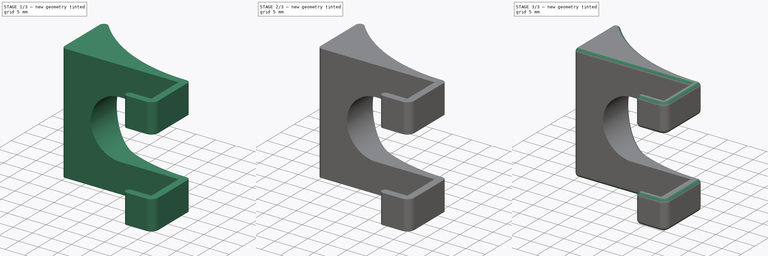
[diagram: build sequence overview — one tinted view per stage of 3, left to right]
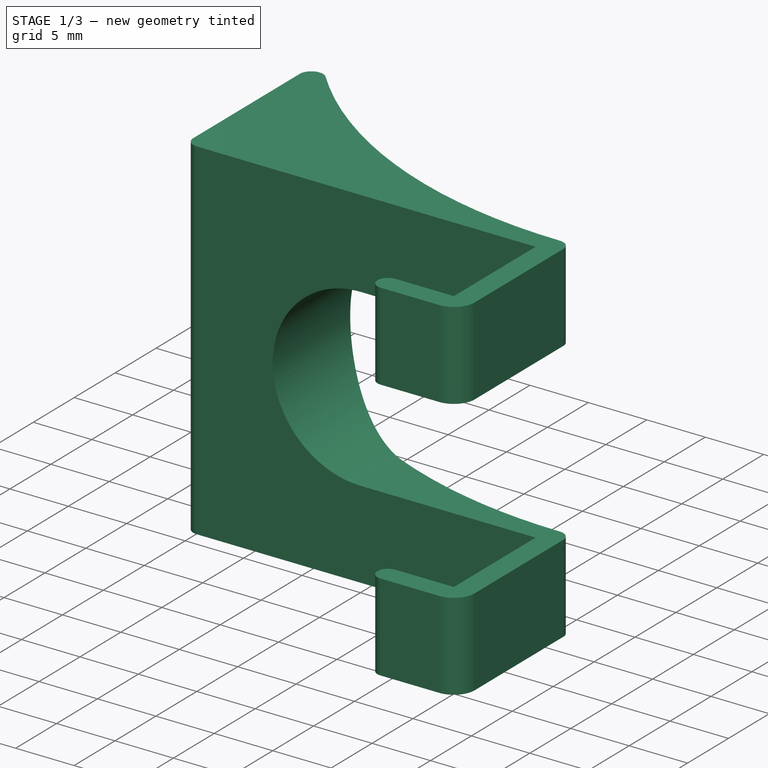
[diagram: stage 1 of 3 — iso view after this stage's code; geometry added in this stage tinted green]
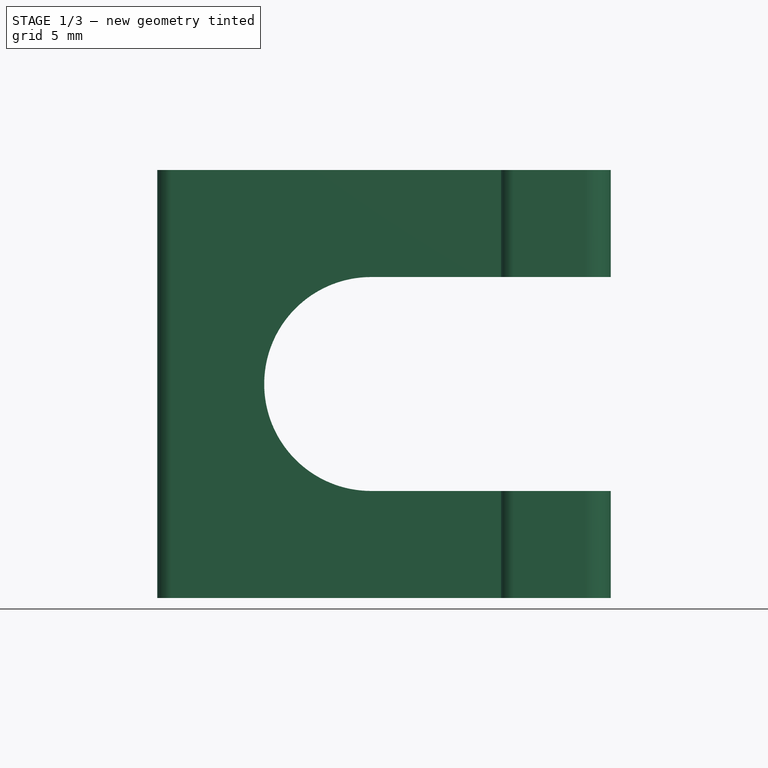
[diagram: stage 1 of 3 — front view after this stage's code; geometry added in this stage tinted green]
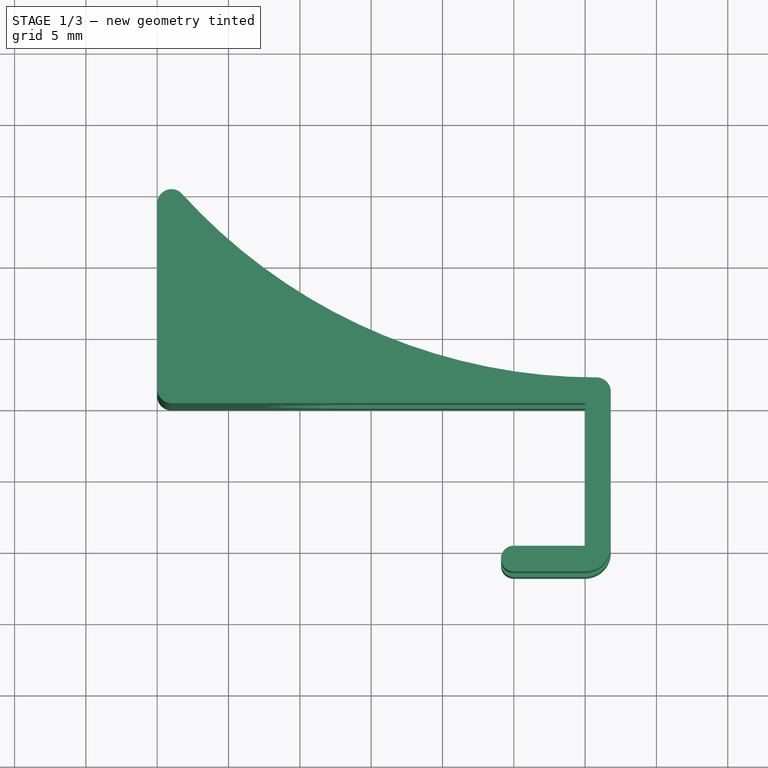
[diagram: stage 1 of 3 — top view after this stage's code; geometry added in this stage tinted green]
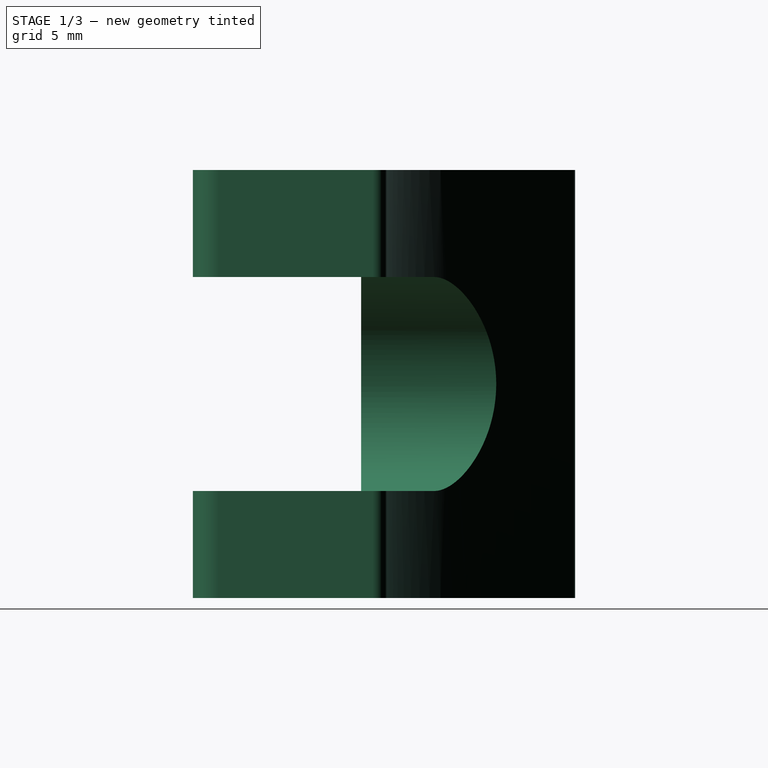
[diagram: stage 1 of 3 — right view after this stage's code; geometry added in this stage tinted green]
FCSTD DOCUMENT  (FreeCAD 0.19R24267 (Git))
Label: Support
License: All rights reserved
LicenseURL: http://en.wikipedia.org/wiki/All_rights_reserved
objects: Sketcher::SketchObject×4, PartDesign::Pocket×3, PartDesign::Fillet×2, Spreadsheet::Sheet×1, PartDesign::Pad×1, PartDesign::Plane×1, PartDesign::Body×1
note: 18 computed .brp shape members not serialized (recipe doc carries the construction recipe); baked Part::Feature solids carry a one-line shape summary decoded from their .brp

FEATURE [Sketcher::SketchObject] Sketch
  FullyConstrained = true
  MapMode = 5
  Support = -> [XY_Plane]
  expr: .Constraints.Width = Spreadsheet.width
  expr: Constraints[26] = Spreadsheet.width
  sketch-geometry (15):
    g0: LineSegment StartX=0 StartY=1 StartZ=0 EndX=0 EndY=14 EndZ=0
    g1: LineSegment StartX=1 StartY=0 StartZ=0 EndX=30 EndY=0 EndZ=0
    g2: LineSegment StartX=30 StartY=0 StartZ=0 EndX=30 EndY=-10 EndZ=0
    g3: LineSegment StartX=30 StartY=-10 StartZ=0 EndX=25 EndY=-10 EndZ=0
    g4: ArcOfCircle CenterX=25 CenterY=-10.9 CenterZ=0 NormalX=0 NormalY=0 NormalZ=1 AngleXU=0 Radius=0.9 StartAngle=1.5708 EndAngle=4.71239
    g5: LineSegment StartX=25 StartY=-11.8 StartZ=0 EndX=30 EndY=-11.8 EndZ=0
    g6: LineSegment StartX=31.8 StartY=-10 StartZ=0 EndX=31.8 EndY=0.8 EndZ=0
    g7: ArcOfCircle CenterX=30 CenterY=-10 CenterZ=0 NormalX=0 NormalY=0 NormalZ=1 AngleXU=0 Radius=1.8 StartAngle=4.71239 EndAngle=6.28319
    g8: ArcOfCircle CenterX=30.8 CenterY=0.8 CenterZ=0 NormalX=0 NormalY=0 NormalZ=1 AngleXU=0 Radius=1 StartAngle=0 EndAngle=1.5708
    g9: ArcOfCircle CenterX=1 CenterY=1 CenterZ=0 NormalX=0 NormalY=0 NormalZ=1 AngleXU=0 Radius=1 StartAngle=3.14159 EndAngle=4.71239
    g10: ArcOfCircle CenterX=1 CenterY=14 CenterZ=0 NormalX=0 NormalY=0 NormalZ=1 AngleXU=0 Radius=1 StartAngle=0.73684 EndAngle=3.14159
    g11: LineSegment StartX=1 StartY=15 StartZ=0 EndX=0 EndY=15 EndZ=0
    g12: LineSegment StartX=30.8 StartY=1.8 StartZ=0 EndX=30.8 EndY=0.8 EndZ=0
    g13: LineSegment StartX=30.8 StartY=0.8 StartZ=0 EndX=31.8 EndY=0.8 EndZ=0
    g14: ArcOfCircle CenterX=30.8 CenterY=41.0379 CenterZ=0 NormalX=0 NormalY=0 NormalZ=1 AngleXU=0 Radius=39.2379 StartAngle=3.87843 EndAngle=4.71239
  constraints (39):
    c: PointOnObject(g1,g-1)
    c: Coincident(g1,g2)
    c: Vertical(g2)
    c: Coincident(g2,g3)
    c: Horizontal(g3)
    c: Tangent(g4,g5) = -1.5708
    c: Vertical(g6)
    c: Horizontal(g5)
    c: Tangent(g4,g3) = -1.5708
    c: Tangent(g6,g7) = -1.5708
    c: Tangent(g5,g7) = -1.5708
    c: Tangent(g6,g8) = -1.5708
    c: Tangent(g0,g9) = 1.5708
    c: Tangent(g1,g9) = -1.5708
    c: Tangent(g0,g10) = 1.5708
    c: DistanceX(g2,g6) = 1.8  'Width'
    c: Coincident(g7,g2)
    c: PointOnObject(g0,g-2)
    c: PointOnObject(g0,g-2)
    c: PointOnObject(g1,g-1)
    c: DistanceX(g4,g5) = 5
    c: Radius(g9) = 1
    c: Radius(g10) = 1
    c: DistanceY(g2,g2) = 10
    c: DistanceX(g0,g1) = 30
    c: Radius(g8) = 1
    c: DistanceY(g1,g8) = 1.8
    c: PointOnObject(g11,g-2)
    c: Horizontal(g11)
    c: Tangent(g11,g10)
    c: PointOnObject(g11,g10)
    c: DistanceY(g1,g11) = 15
    c: Coincident(g12,g8)
    c: Coincident(g12,g8)
    c: Coincident(g13,g8)
    c: Coincident(g13,g6)
    c: Tangent(g14,g10) = 1.5708
    c: Tangent(g14,g8) = 1.5708
    c: Angle(g13,g12) = 1.5708
FEATURE [Spreadsheet::Sheet] Spreadsheet
  cells = B1(width)=1.8
FEATURE [PartDesign::Pad] Pad
  Direction = (1,1,1)
  Length = 30
  Length2 = 100
  Midplane = true
  Profile = -> Sketch
  Type = 0
FEATURE [Sketcher::SketchObject] Sketch001
  ExternalGeometry = -> [Pad]
  FullyConstrained = true
  MapMode = 5
  Placement = pos=(0,0,0) rot=(1,0,0;1.5708rad)
  Support = -> [XZ_Plane]
  sketch-geometry (6):
    g0: ArcOfCircle CenterX=15 CenterY=0 CenterZ=0 NormalX=0 NormalY=0 NormalZ=1 AngleXU=0 Radius=7.5 StartAngle=1.5708 EndAngle=4.71239
    g1: LineSegment StartX=15 StartY=7.5 StartZ=0 EndX=31.8 EndY=7.5 EndZ=0
    g2: LineSegment StartX=15 StartY=-7.5 StartZ=0 EndX=31.8 EndY=-7.5 EndZ=0
    g3: GeomPoint X=30 Y=0 Z=0
    g4: GeomPoint X=30 Y=0 Z=0
    g5: LineSegment StartX=31.8 StartY=7.5 StartZ=0 EndX=31.8 EndY=-7.5 EndZ=0
  constraints (14):
    c: PointOnObject(g0,g-1)
    c: PointOnObject(g1,g-3)
    c: Horizontal(g1)
    c: PointOnObject(g2,g-3)
    c: Horizontal(g2)
    c: Tangent(g1,g0) = 1.5708
    c: Tangent(g2,g0) = -1.5708
    c: DistanceY(g2,g1) = 15
    c: PointOnObject(g3,g-1)
    c: Coincident(g4,g3)
    c: PointOnObject(g3,g-4)
    c: DistanceX(g0,g3) = 15
    c: Coincident(g5,g1)
    c: Coincident(g5,g2)
FEATURE [PartDesign::Pocket] Pocket
  BaseFeature = -> Pad
  Length = 5
  Length2 = 100
  Midplane = true
  Profile = -> Sketch001
  Type = 1
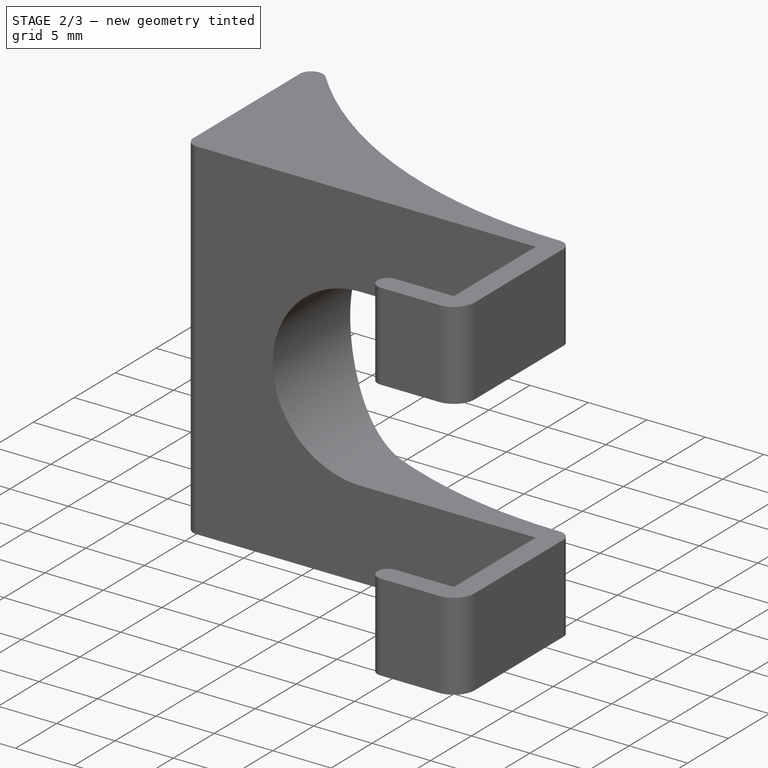
[diagram: stage 2 of 3 — iso view after this stage's code; geometry added in this stage tinted green]
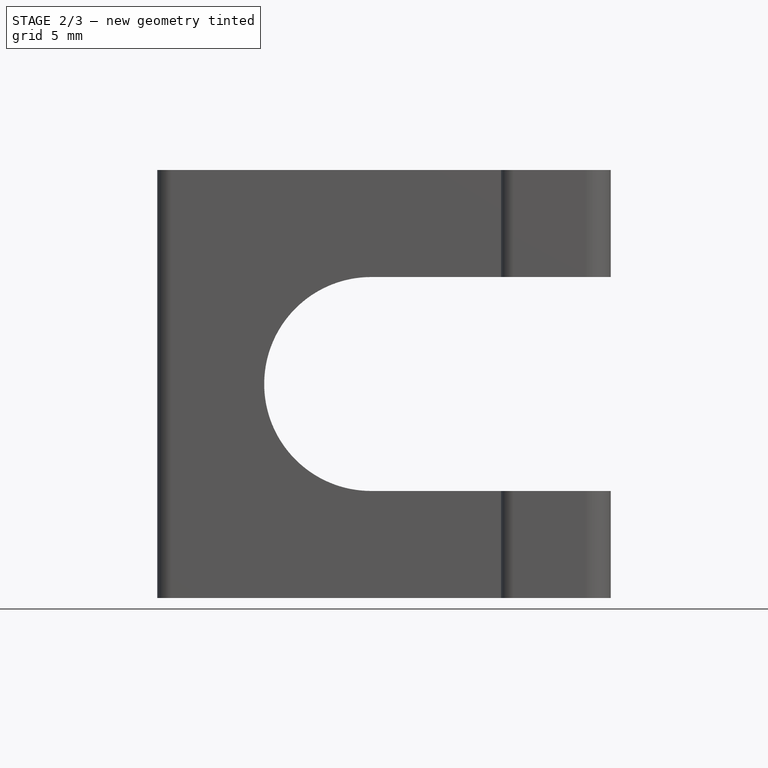
[diagram: stage 2 of 3 — front view after this stage's code; geometry added in this stage tinted green]
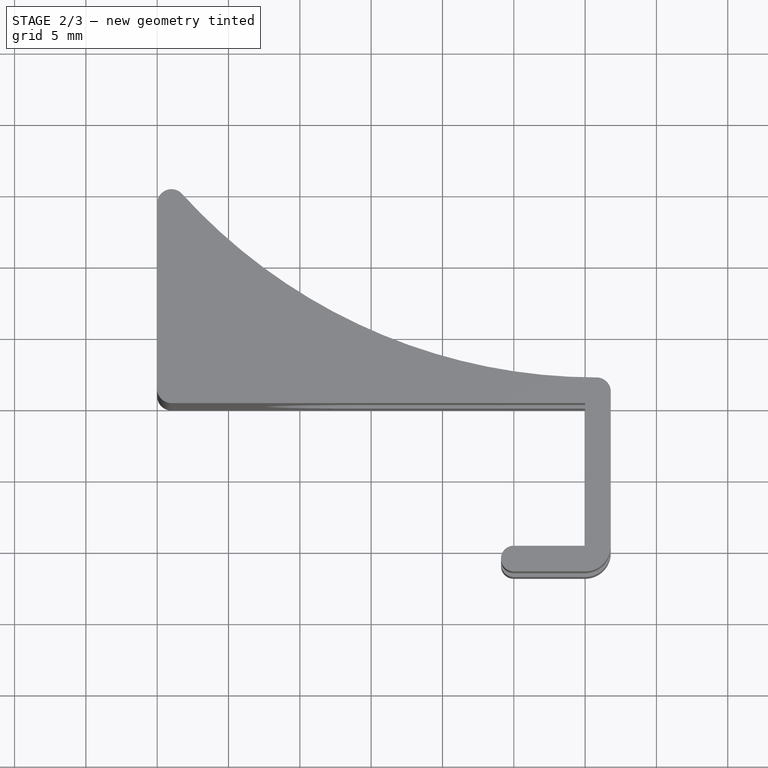
[diagram: stage 2 of 3 — top view after this stage's code; geometry added in this stage tinted green]
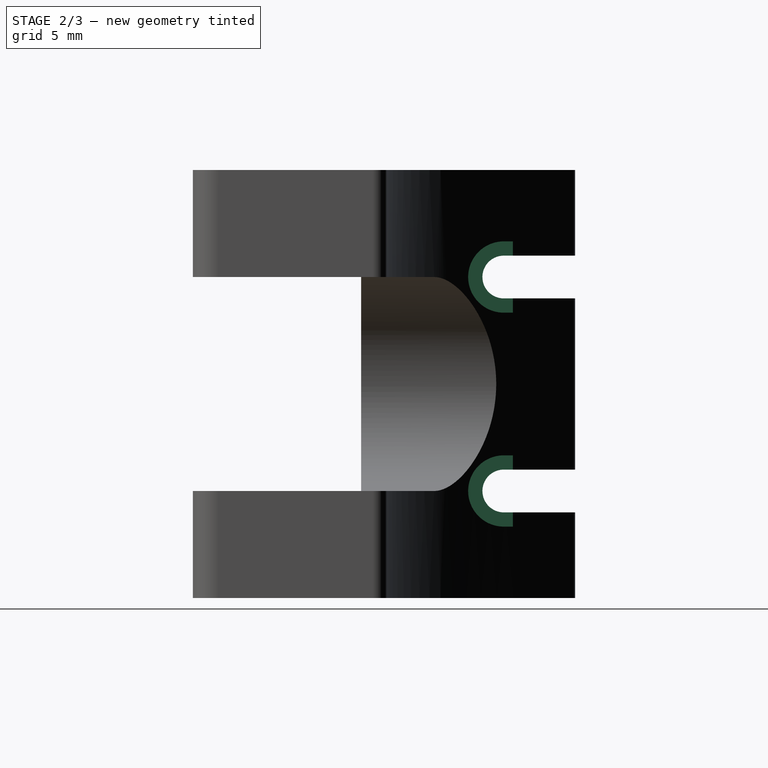
[diagram: stage 2 of 3 — right view after this stage's code; geometry added in this stage tinted green]
FEATURE [PartDesign::Plane] DatumPlane
  AttachmentOffset = pos=(0,0,-6) rot=(0,0,1;0rad)
  Length = 60
  MapMode = 5
  Placement = pos=(6,0,0) rot=(0.57735,-0.57735,-0.57735;2.0944rad)
  ResizeMode = 0
  Support = -> [Pocket]
  Width = 60
FEATURE [Sketcher::SketchObject] Sketch002
  ExternalGeometry = -> [Pocket]
  FullyConstrained = true
  MapMode = 5
  Placement = pos=(6,0,0) rot=(0.57735,-0.57735,-0.57735;2.0944rad)
  Support = -> [DatumPlane]
  sketch-geometry (10):
    g0: LineSegment StartX=0 StartY=-15 StartZ=0 EndX=0 EndY=15 EndZ=0
    g1: LineSegment StartX=-15 StartY=15 StartZ=0 EndX=-15 EndY=-15 EndZ=0
    g2: LineSegment StartX=-15 StartY=-9 StartZ=0 EndX=-10 EndY=-9 EndZ=0
    g3: ArcOfCircle CenterX=-10 CenterY=-7.5 CenterZ=0 NormalX=0 NormalY=0 NormalZ=1 AngleXU=0 Radius=1.5 StartAngle=4.71239 EndAngle=7.85398
    g4: LineSegment StartX=-10 StartY=-6 StartZ=0 EndX=-15 EndY=-6 EndZ=0
    g5: LineSegment StartX=-15 StartY=-9 StartZ=0 EndX=-15 EndY=-6 EndZ=0
    g6: LineSegment StartX=-15 StartY=9 StartZ=0 EndX=-10 EndY=9 EndZ=0
    g7: ArcOfCircle CenterX=-10 CenterY=7.5 CenterZ=0 NormalX=0 NormalY=0 NormalZ=1 AngleXU=0 Radius=1.5 StartAngle=4.71239 EndAngle=7.85398
    g8: LineSegment StartX=-10 StartY=6 StartZ=0 EndX=-15 EndY=6 EndZ=0
    g9: LineSegment StartX=-15 StartY=9 StartZ=0 EndX=-15 EndY=6 EndZ=0
  constraints (24):
    c: Coincident(g0,g-5)
    c: Coincident(g0,g-6)
    c: Coincident(g1,g-4)
    c: Coincident(g1,g-3)
    c: PointOnObject(g2,g1)
    c: Horizontal(g2)
    c: PointOnObject(g4,g1)
    c: Horizontal(g4)
    c: Coincident(g5,g2)
    c: Coincident(g5,g4)
    c: Tangent(g3,g2) = -1.5708
    c: Tangent(g4,g3) = -1.5708
    c: Diameter(g3) = 3
    c: DistanceX(g4,g3) = 5
    c: Horizontal(g6)
    c: Horizontal(g8)
    c: Coincident(g9,g6)
    c: Coincident(g9,g8)
    c: Tangent(g7,g6) = 1.5708
    c: Tangent(g8,g7) = 1.5708
    c: Symmetric(g4,g8,g-1)
    c: DistanceY(g3,g7) = 15
    c: Symmetric(g7,g3,g-1)
    c: PointOnObject(g6,g1)
FEATURE [PartDesign::Pocket] Pocket001
  BaseFeature = -> Pocket
  Length = 5
  Length2 = 100
  Profile = -> Sketch002
  Reversed = true
  Type = 1
FEATURE [Sketcher::SketchObject] Sketch003
  ExternalGeometry = -> [Pocket001]
  FullyConstrained = true
  MapMode = 5
  Placement = pos=(6,0,0) rot=(0.57735,-0.57735,-0.57735;2.0944rad)
  Support = -> [DatumPlane]
  sketch-geometry (10):
    g0: LineSegment StartX=-15 StartY=15 StartZ=0 EndX=-15 EndY=-15 EndZ=0
    g1: LineSegment StartX=0 StartY=15 StartZ=0 EndX=0 EndY=-15 EndZ=0
    g2: ArcOfCircle CenterX=-10 CenterY=7.5 CenterZ=0 NormalX=0 NormalY=0 NormalZ=1 AngleXU=0 Radius=2.5 StartAngle=4.71239 EndAngle=7.85398
    g3: ArcOfCircle CenterX=-10 CenterY=-7.5 CenterZ=0 NormalX=0 NormalY=0 NormalZ=1 AngleXU=0 Radius=2.5 StartAngle=4.71239 EndAngle=7.85398
    g4: LineSegment StartX=-10 StartY=10 StartZ=0 EndX=-15 EndY=10 EndZ=0
    g5: LineSegment StartX=-10 StartY=5 StartZ=0 EndX=-15 EndY=5 EndZ=0
    g6: LineSegment StartX=-15 StartY=5 StartZ=0 EndX=-15 EndY=10 EndZ=0
    g7: LineSegment StartX=-10 StartY=-5 StartZ=0 EndX=-15 EndY=-5 EndZ=0
    g8: LineSegment StartX=-10 StartY=-10 StartZ=0 EndX=-15 EndY=-10 EndZ=0
    g9: LineSegment StartX=-15 StartY=-10 StartZ=0 EndX=-15 EndY=-5 EndZ=0
  constraints (24):
    c: Coincident(g0,g-3)
    c: Coincident(g0,g-6)
    c: Coincident(g1,g-4)
    c: Coincident(g1,g-5)
    c: Coincident(g2,g-7)
    c: Coincident(g3,g-8)
    c: PointOnObject(g4,g0)
    c: Horizontal(g4)
    c: PointOnObject(g5,g0)
    c: Horizontal(g5)
    c: Coincident(g6,g5)
    c: Coincident(g6,g4)
    c: PointOnObject(g7,g0)
    c: Horizontal(g7)
    c: PointOnObject(g8,g0)
    c: Horizontal(g8)
    c: Coincident(g9,g8)
    c: Coincident(g9,g7)
    c: Tangent(g8,g3) = 1.5708
    c: Tangent(g7,g3) = -1.5708
    c: Tangent(g4,g2) = -1.5708
    c: Tangent(g5,g2) = 1.5708
    c: DistanceY(g6,g6) = 5
    c: DistanceY(g9,g9) = 5
FEATURE [PartDesign::Pocket] Pocket002
  BaseFeature = -> Pocket001
  Length = 5
  Length2 = 100
  Profile = -> Sketch003
  Type = 1
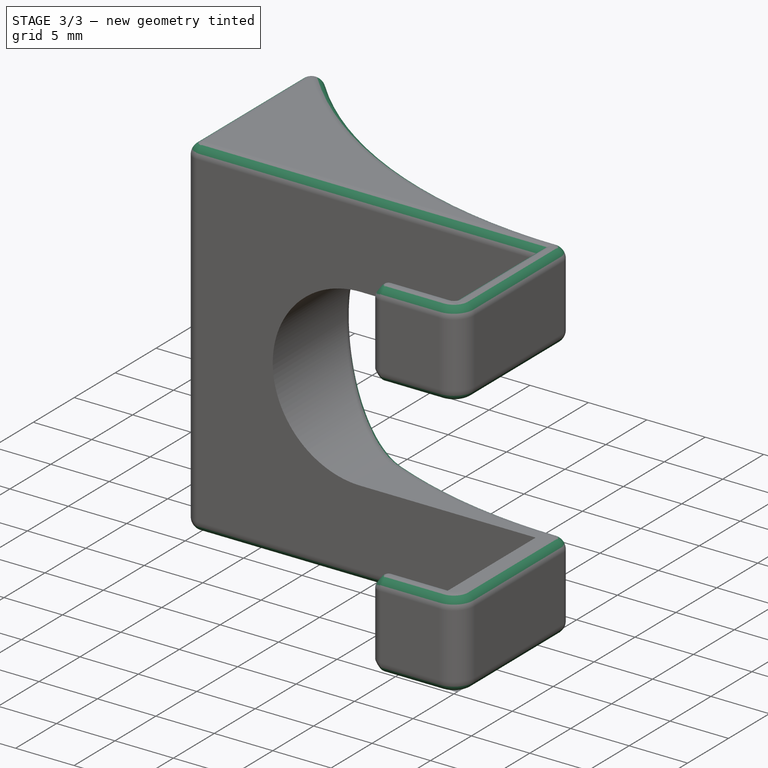
[diagram: stage 3 of 3 — iso view after this stage's code; geometry added in this stage tinted green]
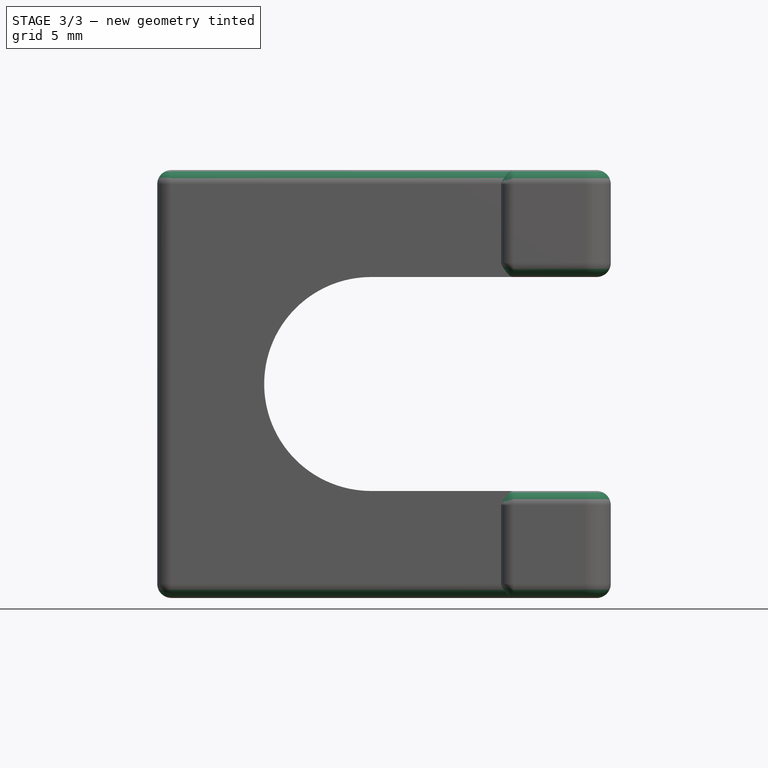
[diagram: stage 3 of 3 — front view after this stage's code; geometry added in this stage tinted green]
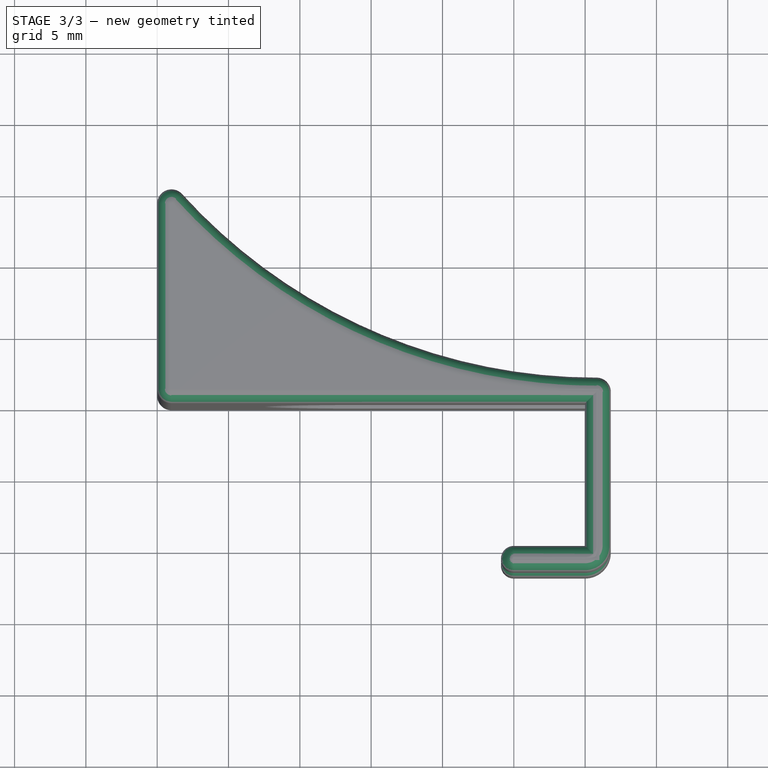
[diagram: stage 3 of 3 — top view after this stage's code; geometry added in this stage tinted green]
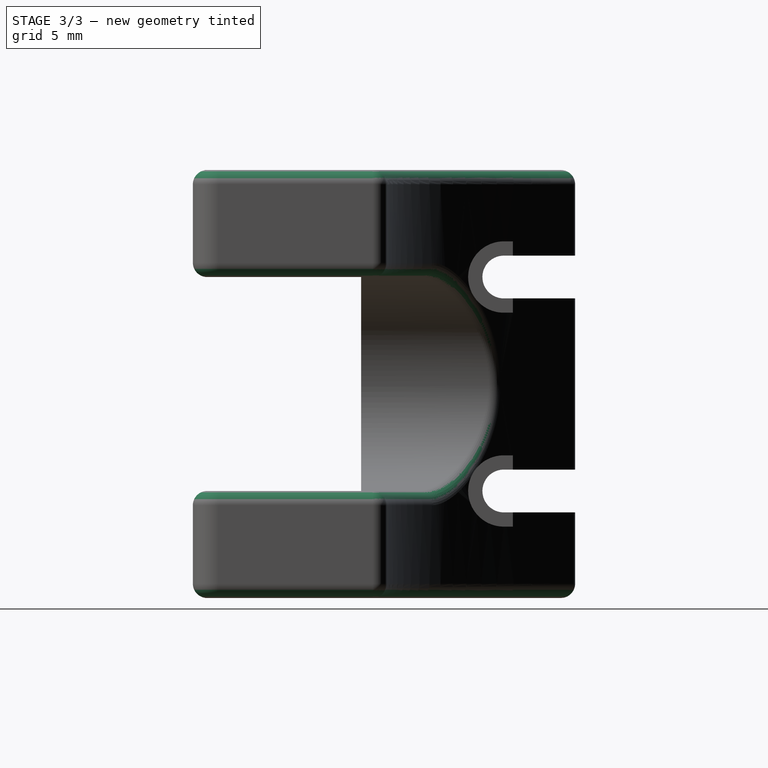
[diagram: stage 3 of 3 — right view after this stage's code; geometry added in this stage tinted green]
FEATURE [PartDesign::Fillet] Fillet
  Base = -> Pocket002 [Edge76,Edge85,Edge74]
  BaseFeature = -> Pocket002
  Radius = 1
  SupportTransform = false
FEATURE [PartDesign::Fillet] Fillet001
  Base = -> Fillet [Edge16,Edge92,Edge87,Edge2]
  BaseFeature = -> Fillet
  Radius = 1
  SupportTransform = false
FEATURE [PartDesign::Body] Body
  Group = -> [Sketch,Pad,Sketch001,Pocket,DatumPlane,Sketch002,Pocket001,Sketch003,Pocket002,Fillet,Fillet001]
  Origin = -> Origin
  Tip = -> Fillet001
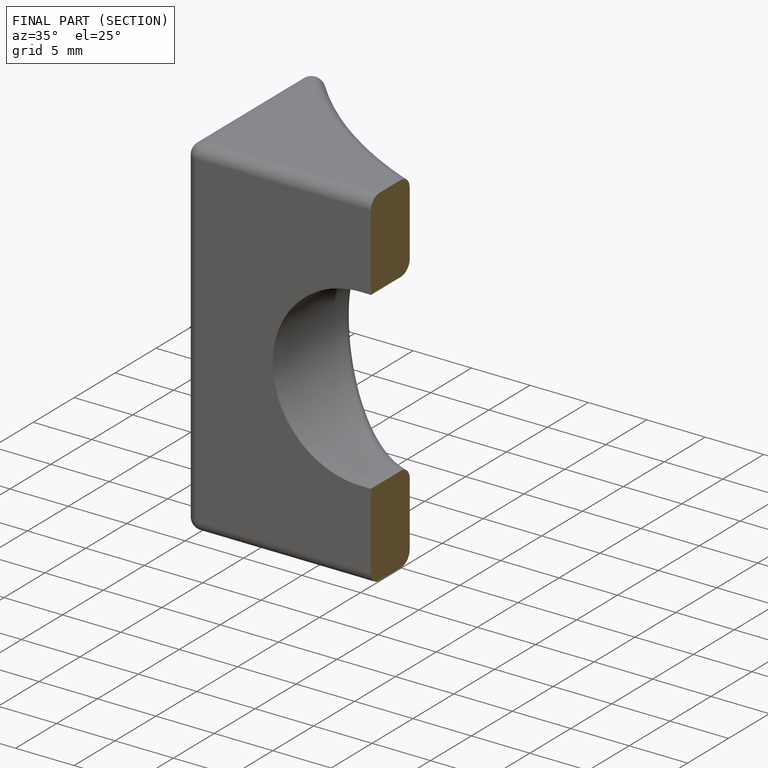
[diagram: finished part — half-section view (interior)]
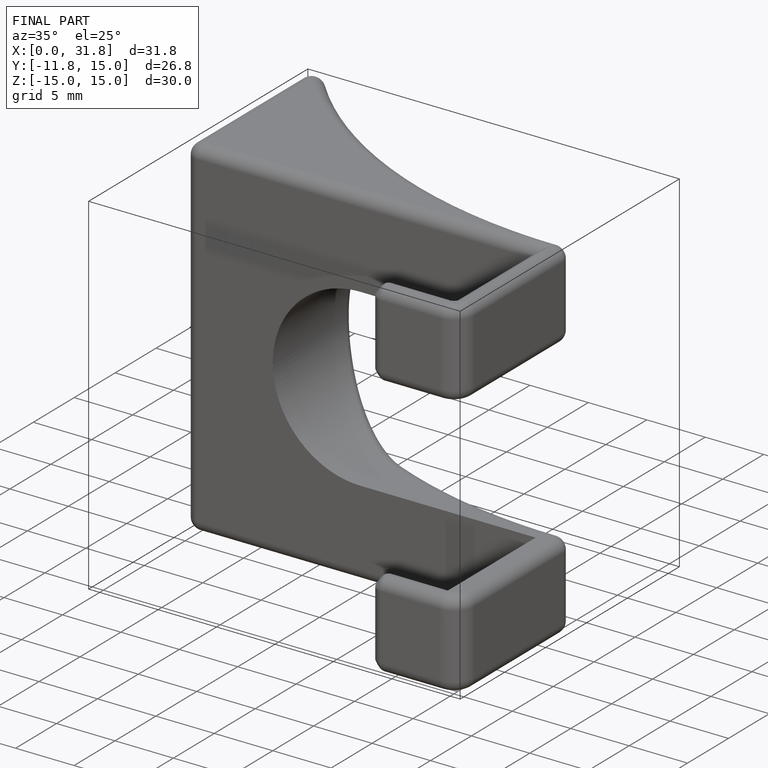
[diagram: finished part — iso view with bounding-box wireframe]
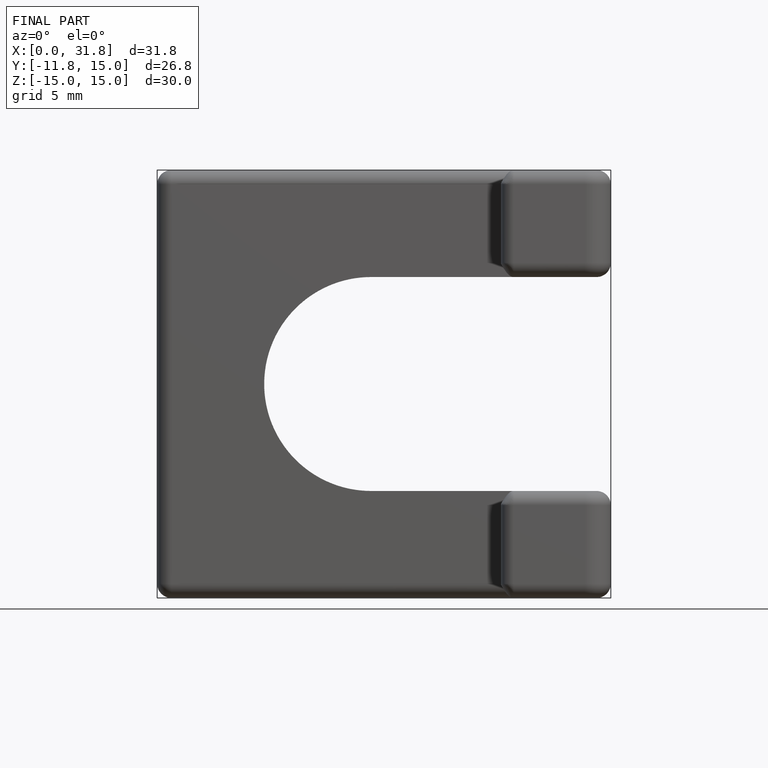
[diagram: finished part — front view with bounding-box wireframe]
